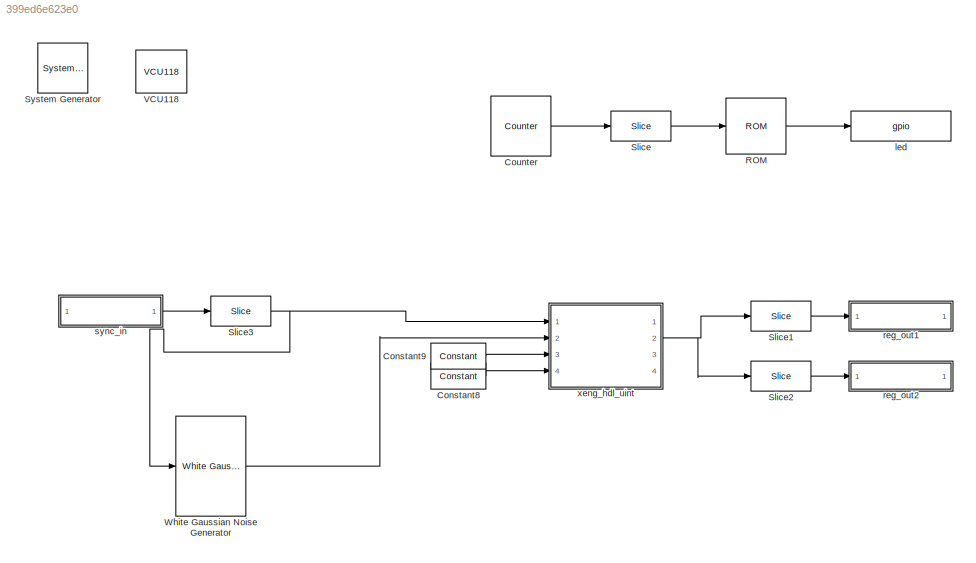
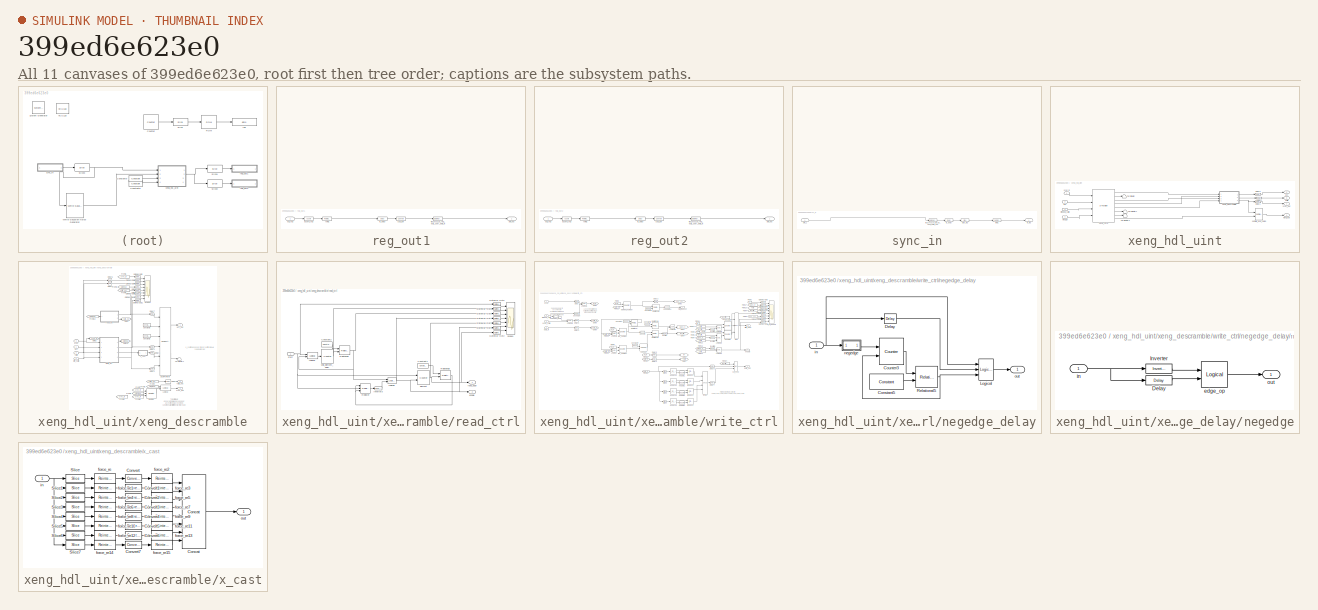
[diagram: thumbnail index - all 11 canvases of the model, root first then tree order]
MODEL slx_399ed6e623e0
KIND model
CONFIG AbsTol = auto
CONFIG EnableMultiTasking = off
CONFIG FixedStep = auto
CONFIG MaxStep = auto
CONFIG MinStep = auto
CONFIG RelTol = 1e-3
CONFIG SampleTimeConstraint = Unconstrained
CONFIG Solver = VariableStepAuto
CONFIG SolverName = VariableStepAuto
CONFIG StartTime = 0.0
CONFIG StopTime = 10.0
BLOCK [Reference]  System Generator  REF=xbsIndex_r4/ System Generator
  AttributesFormatString = System\nGenerator
  Ports = []
  SourceBlock = xbsIndex_r4/ System Generator
  SourceType = Xilinx System Generator Block
  Tag = genX
  UserDataPersistent = on
BLOCK [Reference] Constant8  REF=xbsIndex_r4/Constant
  Ports = [0, 1]
  SourceBlock = xbsIndex_r4/Constant
  SourceType = Xilinx Constant Block Block
BLOCK [Reference] Constant9  REF=xbsIndex_r4/Constant
  Ports = [0, 1]
  SourceBlock = xbsIndex_r4/Constant
  SourceType = Xilinx Constant Block Block
BLOCK [Reference] Counter  REF=xbsIndex_r4/Counter
  Ports = [0, 1]
  SourceBlock = xbsIndex_r4/Counter
  SourceType = Xilinx Counter Block
BLOCK [Reference] ROM  REF=xbsIndex_r4/ROM
  Ports = [1, 1]
  SourceBlock = xbsIndex_r4/ROM
  SourceType = Xilinx Single Port Read-Only Memory Block
BLOCK [Reference] Slice  REF=xbsIndex_r4/Slice
  Ports = [1, 1]
  SourceBlock = xbsIndex_r4/Slice
  SourceType = Xilinx Bit Slice Extractor Block
BLOCK [Reference] Slice1  REF=xbsIndex_r4/Slice
  Ports = [1, 1]
  SourceBlock = xbsIndex_r4/Slice
  SourceType = Xilinx Bit Slice Extractor Block
BLOCK [Reference] Slice2  REF=xbsIndex_r4/Slice
  Ports = [1, 1]
  SourceBlock = xbsIndex_r4/Slice
  SourceType = Xilinx Bit Slice Extractor Block
BLOCK [Reference] Slice3  REF=xbsIndex_r4/Slice
  Ports = [1, 1]
  SourceBlock = xbsIndex_r4/Slice
  SourceType = Xilinx Bit Slice Extractor Block
BLOCK [Reference] VCU118  REF=xps_library/platforms/VCU118  (lib defined in mdl_00b5cec29cd0, mdl_02ab6ecaa3d1, +5 more)
  Ports = []
  SourceBlock = xps_library/platforms/VCU118
  SourceType = xsg core config
  Tag = xps:xsg
BLOCK [Reference] White Gaussian Noise Generator  REF=xrbsComm_r4/White Gaussian 
Noise Generator
  Ports = [1, 1]
  SourceBlock = xrbsComm_r4/White Gaussian \nNoise Generator
  SourceType = White Gaussian Noise Generator
BLOCK [Reference] led  REF=xps_library/gpio  (lib defined in mdl_00b5cec29cd0, mdl_02ab6ecaa3d1, +5 more)
  Ports = [1, 1]
  SourceBlock = xps_library/gpio
  SourceType = gpio
  Tag = xps:gpio
BLOCK [SubSystem] reg_out1
  AncestorBlock = xps_library/software register
  AttributesFormatString = 1output:uf32.0
  Ports = [1, 1]
  RequestExecContextInheritance = off
  Tag = xps:sw_reg
  Variant = off
BLOCK [Reference] reg_out1/assert_reg  REF=xbsIndex_r4/Assert
  Ports = [1, 1]
  SourceBlock = xbsIndex_r4/Assert
  SourceType = Xilinx Assert Block
BLOCK [Reference] reg_out1/cast_gw  REF=xbsIndex_r4/Convert
  Ports = [1, 1]
  SourceBlock = xbsIndex_r4/Convert
  SourceType = Xilinx Type Converter Block
BLOCK [Reference] reg_out1/io_delay  REF=xbsIndex_r4/Delay
  Ports = [1, 1]
  SourceBlock = xbsIndex_r4/Delay
  SourceType = Xilinx Delay Block
BLOCK [Inport] reg_out1/out_reg
  IconDisplay = Port number
BLOCK [Reference] reg_out1/reint1  REF=xbsIndex_r4/Reinterpret
  Ports = [1, 1]
  SourceBlock = xbsIndex_r4/Reinterpret
  SourceType = Xilinx Type Reinterpreter Block
BLOCK [Outport] reg_out1/sim_out
  IconDisplay = Port number
BLOCK [Reference] reg_out1/test_vcu118_reg_out1_user_data_in  REF=xbsIndex_r4/Gateway Out
  Ports = [1, 1]
  SourceBlock = xbsIndex_r4/Gateway Out
  SourceType = Xilinx Gateway Out Block
BLOCK [SubSystem] reg_out2
  AncestorBlock = xps_library/software register
  AttributesFormatString = 1output:uf32.0
  Ports = [1, 1]
  RequestExecContextInheritance = off
  Tag = xps:sw_reg
  Variant = off
BLOCK [Reference] reg_out2/assert_reg  REF=xbsIndex_r4/Assert
  Ports = [1, 1]
  SourceBlock = xbsIndex_r4/Assert
  SourceType = Xilinx Assert Block
BLOCK [Reference] reg_out2/cast_gw  REF=xbsIndex_r4/Convert
  Ports = [1, 1]
  SourceBlock = xbsIndex_r4/Convert
  SourceType = Xilinx Type Converter Block
BLOCK [Reference] reg_out2/io_delay  REF=xbsIndex_r4/Delay
  Ports = [1, 1]
  SourceBlock = xbsIndex_r4/Delay
  SourceType = Xilinx Delay Block
BLOCK [Inport] reg_out2/out_reg
  IconDisplay = Port number
BLOCK [Reference] reg_out2/reint1  REF=xbsIndex_r4/Reinterpret
  Ports = [1, 1]
  SourceBlock = xbsIndex_r4/Reinterpret
  SourceType = Xilinx Type Reinterpreter Block
BLOCK [Outport] reg_out2/sim_out
  IconDisplay = Port number
BLOCK [Reference] reg_out2/test_vcu118_reg_out2_user_data_in  REF=xbsIndex_r4/Gateway Out
  Ports = [1, 1]
  SourceBlock = xbsIndex_r4/Gateway Out
  SourceType = Xilinx Gateway Out Block
BLOCK [SubSystem] sync_in
  AncestorBlock = xps_library/software_register
  AttributesFormatString = 1input:uf32.0
  Ports = [1, 1]
  RequestExecContextInheritance = off
  Tag = xps:sw_reg
  Variant = off
BLOCK [Outport] sync_in/in_reg
  IconDisplay = Port number
BLOCK [Reference] sync_in/io_delay  REF=xbsIndex_r4/Delay
  Ports = [1, 1]
  SourceBlock = xbsIndex_r4/Delay
  SourceType = Xilinx Delay Block
BLOCK [Reference] sync_in/reint1  REF=xbsIndex_r4/Reinterpret
  Ports = [1, 1]
  SourceBlock = xbsIndex_r4/Reinterpret
  SourceType = Xilinx Type Reinterpreter Block
BLOCK [Inport] sync_in/sim_1
  IconDisplay = Port number
BLOCK [Reference] sync_in/slice_reg  REF=xbsIndex_r4/Slice
  Ports = [1, 1]
  SourceBlock = xbsIndex_r4/Slice
  SourceType = Xilinx Bit Slice Extractor Block
BLOCK [Reference] sync_in/test_vcu118_reg_in_user_data_out  REF=xbsIndex_r4/Gateway In
  Ports = [1, 1]
  SourceBlock = xbsIndex_r4/Gateway In
  SourceType = Xilinx Gateway In Block
BLOCK [SubSystem] xeng_hdl_uint
  AttributesFormatString = n_ants=512\nacc_len=2x1024\ndemux=2
  Ports = [4, 4]
  RequestExecContextInheritance = off
  UserDataPersistent = on
  Variant = off
BLOCK [Terminator] xeng_hdl_uint/Terminator
BLOCK [Terminator] xeng_hdl_uint/Terminator1
BLOCK [Terminator] xeng_hdl_uint/Terminator2
BLOCK [Outport] xeng_hdl_uint/acc
  IconDisplay = Port number
  Port = 2
BLOCK [Inport] xeng_hdl_uint/ant
  IconDisplay = Port number
  Port = 2
BLOCK [Reference] xeng_hdl_uint/delay1  REF=xbsIndex_r4/Delay
  Ports = [1, 1]
  SourceBlock = xbsIndex_r4/Delay
  SourceType = Xilinx Delay Block
BLOCK [Reference] xeng_hdl_uint/delay2  REF=xbsIndex_r4/Delay
  Ports = [1, 1]
  SourceBlock = xbsIndex_r4/Delay
  SourceType = Xilinx Delay Block
BLOCK [Reference] xeng_hdl_uint/delay3  REF=xbsIndex_r4/Delay
  Ports = [1, 1]
  SourceBlock = xbsIndex_r4/Delay
  SourceType = Xilinx Delay Block
BLOCK [Inport] xeng_hdl_uint/mcnt_in
  IconDisplay = Port number
  Port = 4
BLOCK [Outport] xeng_hdl_uint/mcnt_out
  IconDisplay = Port number
  Port = 4
BLOCK [Reference] xeng_hdl_uint/sample_and_hold3  REF=casper_library_misc/sample_and_hold  (lib defined in mdl_357510c33b49, mdl_57b5f564ae26, +4 more)
  Ports = [2, 1]
  SourceBlock = casper_library_misc/sample_and_hold
  SourceType = sample_and_hold
BLOCK [Inport] xeng_hdl_uint/sync_in
  IconDisplay = Port number
BLOCK [Outport] xeng_hdl_uint/sync_out
  IconDisplay = Port number
BLOCK [Outport] xeng_hdl_uint/valid
  IconDisplay = Port number
  Port = 3
BLOCK [Inport] xeng_hdl_uint/window_valid
  IconDisplay = Port number
  Port = 3
BLOCK [S-Function] xeng_hdl_uint/xeng_core
  AncestorBlock = xbsIndex_r4/Black Box
  CloseFcn = xlDestroyGui(gcbh);
  CopyFcn = xlBlockMoveCallback(gcbh);;xlbbCopyCallback;
  DeleteFcn = xlDestroyGui(gcbh);
  DestroyFcn = xlDestroyGui(gcbh);
  EnableBusSupport = off
  FunctionName = sysgen
  LoadFcn = xlBlockLoadCallback(gcbh);
  ModelCloseFcn = xlDestroyGui(gcbh);
  MoveFcn = xlBlockMoveCallback(gcbh);
  OpenFcn = xlOpenGui(gcbh, 'blackbox2_gui.xml', @blackbox2enablement, -1)
  Parameters = ptable_
  Ports = [4, 8]
  PostSaveFcn = xlBlockPostSaveCallback(gcbh);
  PreSaveFcn = xlBlockPreSaveCallback(gcbh);
  SFcnIsStateOwnerBlock = off
  SFunctionDeploymentMode = off
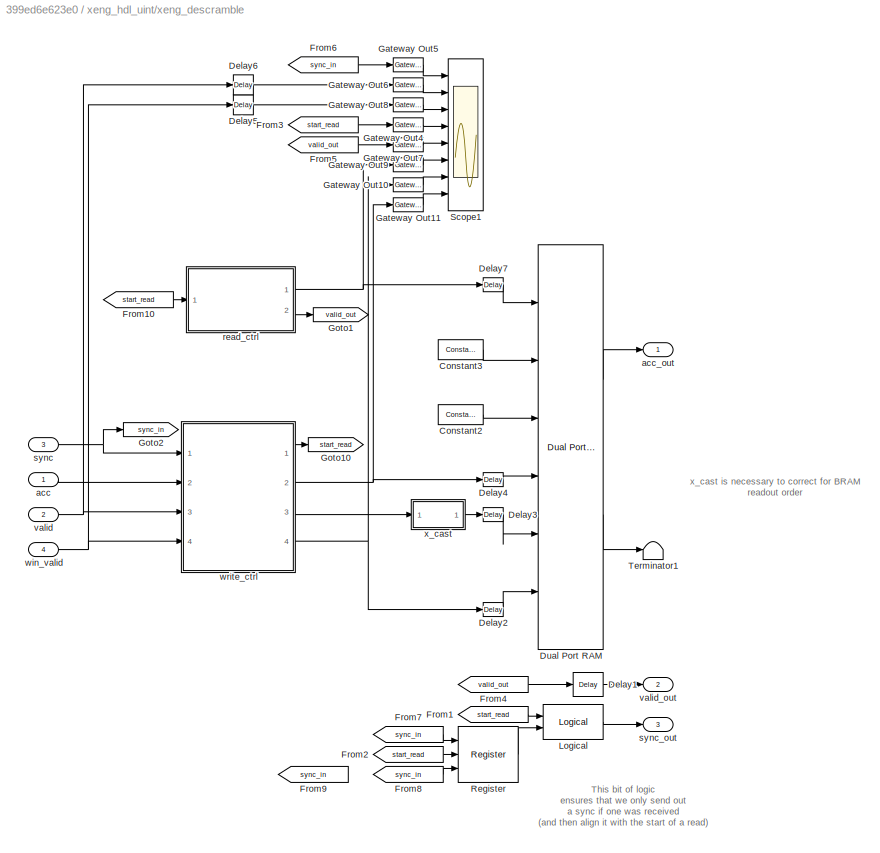
BLOCK [SubSystem] xeng_hdl_uint/xeng_descramble
  AncestorBlock = casper_library_correlator/xeng_descramble
  AttributesFormatString = num_ants=512
  Ports = [4, 3]
  RequestExecContextInheritance = off
  Variant = off
BLOCK [Reference] xeng_hdl_uint/xeng_descramble/Constant2  REF=xbsIndex_r4/Constant
  Ports = [0, 1]
  SourceBlock = xbsIndex_r4/Constant
  SourceType = Xilinx Constant Block Block
BLOCK [Reference] xeng_hdl_uint/xeng_descramble/Constant3  REF=xbsIndex_r4/Constant
  Ports = [0, 1]
  SourceBlock = xbsIndex_r4/Constant
  SourceType = Xilinx Constant Block Block
BLOCK [Reference] xeng_hdl_uint/xeng_descramble/Delay1  REF=xbsIndex_r4/Delay
  Ports = [1, 1]
  SourceBlock = xbsIndex_r4/Delay
  SourceType = Xilinx Delay Block
BLOCK [Reference] xeng_hdl_uint/xeng_descramble/Delay2  REF=xbsIndex_r4/Delay
  Ports = [1, 1]
  SourceBlock = xbsIndex_r4/Delay
  SourceType = Xilinx Delay Block
BLOCK [Reference] xeng_hdl_uint/xeng_descramble/Delay3  REF=xbsIndex_r4/Delay
  Ports = [1, 1]
  SourceBlock = xbsIndex_r4/Delay
  SourceType = Xilinx Delay Block
BLOCK [Reference] xeng_hdl_uint/xeng_descramble/Delay4  REF=xbsIndex_r4/Delay
  Ports = [1, 1]
  SourceBlock = xbsIndex_r4/Delay
  SourceType = Xilinx Delay Block
BLOCK [Reference] xeng_hdl_uint/xeng_descramble/Delay5  REF=xbsIndex_r4/Delay
  Ports = [1, 1]
  SourceBlock = xbsIndex_r4/Delay
  SourceType = Xilinx Delay Block
BLOCK [Reference] xeng_hdl_uint/xeng_descramble/Delay6  REF=xbsIndex_r4/Delay
  Ports = [1, 1]
  SourceBlock = xbsIndex_r4/Delay
  SourceType = Xilinx Delay Block
BLOCK [Reference] xeng_hdl_uint/xeng_descramble/Delay7  REF=xbsIndex_r4/Delay
  Ports = [1, 1]
  SourceBlock = xbsIndex_r4/Delay
  SourceType = Xilinx Delay Block
BLOCK [Reference] xeng_hdl_uint/xeng_descramble/Dual Port RAM  REF=xbsIndex_r4/Dual Port RAM
  Ports = [6, 2]
  SourceBlock = xbsIndex_r4/Dual Port RAM
  SourceType = Xilinx Dual Port Random Access Memory Block
BLOCK [From] xeng_hdl_uint/xeng_descramble/From1
  CloseFcn = tagdialog Close
  GotoTag = start_read
BLOCK [From] xeng_hdl_uint/xeng_descramble/From10
  CloseFcn = tagdialog Close
  GotoTag = start_read
BLOCK [From] xeng_hdl_uint/xeng_descramble/From2
  CloseFcn = tagdialog Close
  GotoTag = start_read
BLOCK [From] xeng_hdl_uint/xeng_descramble/From3
  CloseFcn = tagdialog Close
  GotoTag = start_read
BLOCK [From] xeng_hdl_uint/xeng_descramble/From4
  CloseFcn = tagdialog Close
  GotoTag = valid_out
BLOCK [From] xeng_hdl_uint/xeng_descramble/From5
  CloseFcn = tagdialog Close
  GotoTag = valid_out
BLOCK [From] xeng_hdl_uint/xeng_descramble/From6
  CloseFcn = tagdialog Close
  GotoTag = sync_in
BLOCK [From] xeng_hdl_uint/xeng_descramble/From7
  CloseFcn = tagdialog Close
  GotoTag = sync_in
BLOCK [From] xeng_hdl_uint/xeng_descramble/From8
  CloseFcn = tagdialog Close
  GotoTag = sync_in
BLOCK [From] xeng_hdl_uint/xeng_descramble/From9
  CloseFcn = tagdialog Close
  GotoTag = sync_in
BLOCK [Reference] xeng_hdl_uint/xeng_descramble/Gateway Out10  REF=xbsIndex_r4/Gateway Out
  Ports = [1, 1]
  SourceBlock = xbsIndex_r4/Gateway Out
  SourceType = Xilinx Gateway Out Block
BLOCK [Reference] xeng_hdl_uint/xeng_descramble/Gateway Out11  REF=xbsIndex_r4/Gateway Out
  Ports = [1, 1]
  SourceBlock = xbsIndex_r4/Gateway Out
  SourceType = Xilinx Gateway Out Block
BLOCK [Reference] xeng_hdl_uint/xeng_descramble/Gateway Out4  REF=xbsIndex_r4/Gateway Out
  Ports = [1, 1]
  SourceBlock = xbsIndex_r4/Gateway Out
  SourceType = Xilinx Gateway Out Block
BLOCK [Reference] xeng_hdl_uint/xeng_descramble/Gateway Out5  REF=xbsIndex_r4/Gateway Out
  Ports = [1, 1]
  SourceBlock = xbsIndex_r4/Gateway Out
  SourceType = Xilinx Gateway Out Block
BLOCK [Reference] xeng_hdl_uint/xeng_descramble/Gateway Out6  REF=xbsIndex_r4/Gateway Out
  Ports = [1, 1]
  SourceBlock = xbsIndex_r4/Gateway Out
  SourceType = Xilinx Gateway Out Block
BLOCK [Reference] xeng_hdl_uint/xeng_descramble/Gateway Out7  REF=xbsIndex_r4/Gateway Out
  Ports = [1, 1]
  SourceBlock = xbsIndex_r4/Gateway Out
  SourceType = Xilinx Gateway Out Block
BLOCK [Reference] xeng_hdl_uint/xeng_descramble/Gateway Out8  REF=xbsIndex_r4/Gateway Out
  Ports = [1, 1]
  SourceBlock = xbsIndex_r4/Gateway Out
  SourceType = Xilinx Gateway Out Block
BLOCK [Reference] xeng_hdl_uint/xeng_descramble/Gateway Out9  REF=xbsIndex_r4/Gateway Out
  Ports = [1, 1]
  SourceBlock = xbsIndex_r4/Gateway Out
  SourceType = Xilinx Gateway Out Block
BLOCK [Goto] xeng_hdl_uint/xeng_descramble/Goto1
  GotoTag = valid_out
BLOCK [Goto] xeng_hdl_uint/xeng_descramble/Goto10
  GotoTag = start_read
BLOCK [Goto] xeng_hdl_uint/xeng_descramble/Goto2
  GotoTag = sync_in
BLOCK [Reference] xeng_hdl_uint/xeng_descramble/Logical  REF=xbsIndex_r4/Logical
  Ports = [2, 1]
  SourceBlock = xbsIndex_r4/Logical
  SourceType = Xilinx Logical Block Block
BLOCK [Reference] xeng_hdl_uint/xeng_descramble/Register  REF=xbsIndex_r4/Register
  Ports = [3, 1]
  SourceBlock = xbsIndex_r4/Register
  SourceType = Xilinx Register Block
BLOCK [Scope] xeng_hdl_uint/xeng_descramble/Scope1
  NumInputPorts = 8
  Ports = [8]
  ScopeSpecificationString = C++SS(StrPVP('Location','[1675, 185, 3593, 1323]'),StrPVP('Open','off'),StrPVP('ZoomMode','xonly'),MxPVP('AxesTitles',24,'struct(''axes1'',''sync'',''axes2'',''valid_in'',''axes3'',''window_valid'',''axes4'',''start_readout'',''axes5'',''valid_out'',''axes6'',''read_addr'',''axes7'',''valid_write'',''axes8'',''write_addr'')'),StrPVP('ShowLegends','off'),StrPVP('TimeRange','70000'),StrPVP('YMin','0...<+255ch>
BLOCK [Terminator] xeng_hdl_uint/xeng_descramble/Terminator1
BLOCK [Inport] xeng_hdl_uint/xeng_descramble/acc
  IconDisplay = Port number
BLOCK [Outport] xeng_hdl_uint/xeng_descramble/acc_out
  IconDisplay = Port number
BLOCK [SubSystem] xeng_hdl_uint/xeng_descramble/read_ctrl
  AncestorBlock = casper_library_correlator/xeng_mask/win2_ctrl
  Ports = [1, 2]
  RequestExecContextInheritance = off
  Variant = off
BLOCK [Reference] xeng_hdl_uint/xeng_descramble/read_ctrl/Constant1  REF=xbsIndex_r4/Constant
  Ports = [0, 1]
  SourceBlock = xbsIndex_r4/Constant
  SourceType = Xilinx Constant Block Block
BLOCK [Reference] xeng_hdl_uint/xeng_descramble/read_ctrl/Constant2  REF=xbsIndex_r4/Constant
  Ports = [0, 1]
  SourceBlock = xbsIndex_r4/Constant
  SourceType = Xilinx Constant Block Block
BLOCK [Reference] xeng_hdl_uint/xeng_descramble/read_ctrl/Gateway Out1  REF=xbsIndex_r4/Gateway Out
  Ports = [1, 1]
  SourceBlock = xbsIndex_r4/Gateway Out
  SourceType = Xilinx Gateway Out Block
BLOCK [Reference] xeng_hdl_uint/xeng_descramble/read_ctrl/Gateway Out2  REF=xbsIndex_r4/Gateway Out
  Ports = [1, 1]
  SourceBlock = xbsIndex_r4/Gateway Out
  SourceType = Xilinx Gateway Out Block
BLOCK [Reference] xeng_hdl_uint/xeng_descramble/read_ctrl/Gateway Out4  REF=xbsIndex_r4/Gateway Out
  Ports = [1, 1]
  SourceBlock = xbsIndex_r4/Gateway Out
  SourceType = Xilinx Gateway Out Block
BLOCK [Reference] xeng_hdl_uint/xeng_descramble/read_ctrl/Gateway Out5  REF=xbsIndex_r4/Gateway Out
  Ports = [1, 1]
  SourceBlock = xbsIndex_r4/Gateway Out
  SourceType = Xilinx Gateway Out Block
BLOCK [Reference] xeng_hdl_uint/xeng_descramble/read_ctrl/Gateway Out6  REF=xbsIndex_r4/Gateway Out
  Ports = [1, 1]
  SourceBlock = xbsIndex_r4/Gateway Out
  SourceType = Xilinx Gateway Out Block
BLOCK [Reference] xeng_hdl_uint/xeng_descramble/read_ctrl/Gateway Out7  REF=xbsIndex_r4/Gateway Out
  Ports = [1, 1]
  SourceBlock = xbsIndex_r4/Gateway Out
  SourceType = Xilinx Gateway Out Block
BLOCK [Reference] xeng_hdl_uint/xeng_descramble/read_ctrl/Gateway Out8  REF=xbsIndex_r4/Gateway Out
  Ports = [1, 1]
  SourceBlock = xbsIndex_r4/Gateway Out
  SourceType = Xilinx Gateway Out Block
BLOCK [Reference] xeng_hdl_uint/xeng_descramble/read_ctrl/Inverter3  REF=xbsIndex_r4/Inverter
  Ports = [1, 1]
  SourceBlock = xbsIndex_r4/Inverter
  SourceType = Xilinx Inverter Block
BLOCK [Reference] xeng_hdl_uint/xeng_descramble/read_ctrl/Logical1  REF=xbsIndex_r4/Logical
  Ports = [2, 1]
  SourceBlock = xbsIndex_r4/Logical
  SourceType = Xilinx Logical Block Block
BLOCK [Reference] xeng_hdl_uint/xeng_descramble/read_ctrl/Logical7  REF=xbsIndex_r4/Logical
  Ports = [2, 1]
  SourceBlock = xbsIndex_r4/Logical
  SourceType = Xilinx Logical Block Block
BLOCK [Reference] xeng_hdl_uint/xeng_descramble/read_ctrl/Register  REF=xbsIndex_r4/Register
  Ports = [3, 1]
  SourceBlock = xbsIndex_r4/Register
  SourceType = Xilinx Register Block
BLOCK [Reference] xeng_hdl_uint/xeng_descramble/read_ctrl/Relational1  REF=xbsIndex_r4/Relational
  Ports = [2, 1]
  SourceBlock = xbsIndex_r4/Relational
  SourceType = Xilinx Arithmetic Relational Operator Block
BLOCK [Reference] xeng_hdl_uint/xeng_descramble/read_ctrl/Relational3  REF=xbsIndex_r4/Relational
  Ports = [2, 1]
  SourceBlock = xbsIndex_r4/Relational
  SourceType = Xilinx Arithmetic Relational Operator Block
BLOCK [Scope] xeng_hdl_uint/xeng_descramble/read_ctrl/Scope1
  NumInputPorts = 7
  Ports = [7]
  ScopeSpecificationString = C++SS(StrPVP('Location','[1675, 56, 3593, 1194]'),StrPVP('Open','off'),StrPVP('ZoomMode','xonly'),MxPVP('AxesTitles',24,'struct(''axes1'',''start_readout'',''axes2'',''delay_readout_cnt'',''axes3'',''ship_element_now'',''axes4'',''rst_element_cnt'',''axes5'',''element_cnt'',''axes6'',''read'',''axes7'',''read_addr'')'),StrPVP('ShowLegends','off'),StrPVP('YMin','0~0~0~0~0~0~0'),StrPVP('YMax','1~20~...<+215ch>
BLOCK [Reference] xeng_hdl_uint/xeng_descramble/read_ctrl/element  REF=xbsIndex_r4/Counter
  Ports = [2, 1]
  SourceBlock = xbsIndex_r4/Counter
  SourceType = Xilinx Counter Block
BLOCK [Outport] xeng_hdl_uint/xeng_descramble/read_ctrl/enable
  IconDisplay = Port number
  Port = 2
BLOCK [Outport] xeng_hdl_uint/xeng_descramble/read_ctrl/read_addr
  IconDisplay = Port number
BLOCK [Reference] xeng_hdl_uint/xeng_descramble/read_ctrl/ship_element_delay  REF=xbsIndex_r4/Counter
  Ports = [1, 1]
  SourceBlock = xbsIndex_r4/Counter
  SourceType = Xilinx Counter Block
BLOCK [Inport] xeng_hdl_uint/xeng_descramble/read_ctrl/start
  IconDisplay = Port number
BLOCK [Inport] xeng_hdl_uint/xeng_descramble/sync
  IconDisplay = Port number
  Port = 3
BLOCK [Outport] xeng_hdl_uint/xeng_descramble/sync_out
  IconDisplay = Port number
  Port = 3
BLOCK [Inport] xeng_hdl_uint/xeng_descramble/valid
  IconDisplay = Port number
  Port = 2
BLOCK [Outport] xeng_hdl_uint/xeng_descramble/valid_out
  IconDisplay = Port number
  Port = 2
BLOCK [Inport] xeng_hdl_uint/xeng_descramble/win_valid
  IconDisplay = Port number
  Port = 4
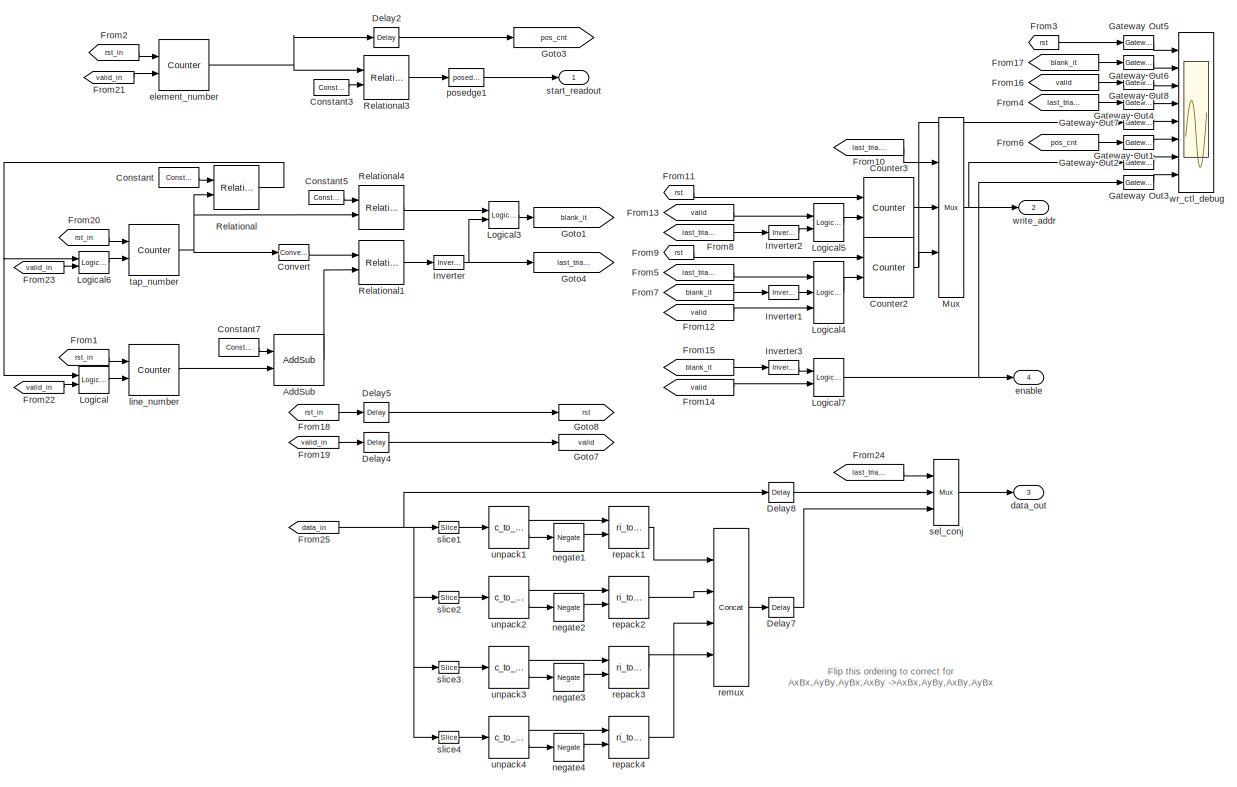
[diagram: xeng_hdl_uint/xeng_descramble/write_ctrl - part 1/2, most of the canvas]
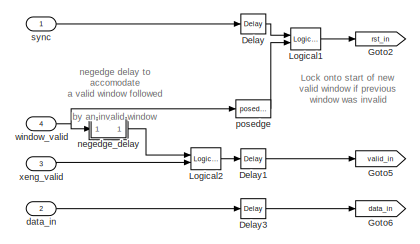
[diagram: xeng_hdl_uint/xeng_descramble/write_ctrl - part 2/2, top left region]
BLOCK [SubSystem] xeng_hdl_uint/xeng_descramble/write_ctrl
  AncestorBlock = casper_library_correlator/xeng_mask/win2_ctrl
  Ports = [4, 4]
  RequestExecContextInheritance = off
  Variant = off
BLOCK [Reference] xeng_hdl_uint/xeng_descramble/write_ctrl/AddSub  REF=xbsIndex_r4/AddSub
  Ports = [2, 1]
  SourceBlock = xbsIndex_r4/AddSub
  SourceType = Xilinx Adder/Subtracter Block
BLOCK [Reference] xeng_hdl_uint/xeng_descramble/write_ctrl/Constant  REF=xbsIndex_r4/Constant
  Ports = [0, 1]
  SourceBlock = xbsIndex_r4/Constant
  SourceType = Xilinx Constant Block Block
BLOCK [Reference] xeng_hdl_uint/xeng_descramble/write_ctrl/Constant3  REF=xbsIndex_r4/Constant
  Ports = [0, 1]
  SourceBlock = xbsIndex_r4/Constant
  SourceType = Xilinx Constant Block Block
BLOCK [Reference] xeng_hdl_uint/xeng_descramble/write_ctrl/Constant5  REF=xbsIndex_r4/Constant
  Ports = [0, 1]
  SourceBlock = xbsIndex_r4/Constant
  SourceType = Xilinx Constant Block Block
BLOCK [Reference] xeng_hdl_uint/xeng_descramble/write_ctrl/Constant7  REF=xbsIndex_r4/Constant
  Ports = [0, 1]
  SourceBlock = xbsIndex_r4/Constant
  SourceType = Xilinx Constant Block Block
BLOCK [Reference] xeng_hdl_uint/xeng_descramble/write_ctrl/Convert  REF=xbsIndex_r4/Convert
  Ports = [1, 1]
  SourceBlock = xbsIndex_r4/Convert
  SourceType = Xilinx Type Converter Block
BLOCK [Reference] xeng_hdl_uint/xeng_descramble/write_ctrl/Counter2  REF=xbsIndex_r4/Counter
  Ports = [2, 1]
  SourceBlock = xbsIndex_r4/Counter
  SourceType = Xilinx Counter Block
BLOCK [Reference] xeng_hdl_uint/xeng_descramble/write_ctrl/Counter3  REF=xbsIndex_r4/Counter
  Ports = [2, 1]
  SourceBlock = xbsIndex_r4/Counter
  SourceType = Xilinx Counter Block
BLOCK [Reference] xeng_hdl_uint/xeng_descramble/write_ctrl/Delay  REF=xbsIndex_r4/Delay
  Ports = [1, 1]
  SourceBlock = xbsIndex_r4/Delay
  SourceType = Xilinx Delay Block
BLOCK [Reference] xeng_hdl_uint/xeng_descramble/write_ctrl/Delay1  REF=xbsIndex_r4/Delay
  Ports = [1, 1]
  SourceBlock = xbsIndex_r4/Delay
  SourceType = Xilinx Delay Block
BLOCK [Reference] xeng_hdl_uint/xeng_descramble/write_ctrl/Delay2  REF=xbsIndex_r4/Delay
  Ports = [1, 1]
  SourceBlock = xbsIndex_r4/Delay
  SourceType = Xilinx Delay Block
BLOCK [Reference] xeng_hdl_uint/xeng_descramble/write_ctrl/Delay3  REF=xbsIndex_r4/Delay
  Ports = [1, 1]
  SourceBlock = xbsIndex_r4/Delay
  SourceType = Xilinx Delay Block
BLOCK [Reference] xeng_hdl_uint/xeng_descramble/write_ctrl/Delay4  REF=xbsIndex_r4/Delay
  Ports = [1, 1]
  SourceBlock = xbsIndex_r4/Delay
  SourceType = Xilinx Delay Block
BLOCK [Reference] xeng_hdl_uint/xeng_descramble/write_ctrl/Delay5  REF=xbsIndex_r4/Delay
  Ports = [1, 1]
  SourceBlock = xbsIndex_r4/Delay
  SourceType = Xilinx Delay Block
BLOCK [Reference] xeng_hdl_uint/xeng_descramble/write_ctrl/Delay7  REF=xbsIndex_r4/Delay
  Ports = [1, 1]
  SourceBlock = xbsIndex_r4/Delay
  SourceType = Xilinx Delay Block
BLOCK [Reference] xeng_hdl_uint/xeng_descramble/write_ctrl/Delay8  REF=xbsIndex_r4/Delay
  Ports = [1, 1]
  SourceBlock = xbsIndex_r4/Delay
  SourceType = Xilinx Delay Block
BLOCK [From] xeng_hdl_uint/xeng_descramble/write_ctrl/From1
  CloseFcn = tagdialog Close
  GotoTag = rst_in
BLOCK [From] xeng_hdl_uint/xeng_descramble/write_ctrl/From10
  CloseFcn = tagdialog Close
  GotoTag = last_triangle
BLOCK [From] xeng_hdl_uint/xeng_descramble/write_ctrl/From11
  CloseFcn = tagdialog Close
  GotoTag = rst
BLOCK [From] xeng_hdl_uint/xeng_descramble/write_ctrl/From12
  CloseFcn = tagdialog Close
  GotoTag = valid
BLOCK [From] xeng_hdl_uint/xeng_descramble/write_ctrl/From13
  CloseFcn = tagdialog Close
  GotoTag = valid
BLOCK [From] xeng_hdl_uint/xeng_descramble/write_ctrl/From14
  CloseFcn = tagdialog Close
  GotoTag = valid
BLOCK [From] xeng_hdl_uint/xeng_descramble/write_ctrl/From15
  CloseFcn = tagdialog Close
  GotoTag = blank_it
BLOCK [From] xeng_hdl_uint/xeng_descramble/write_ctrl/From16
  CloseFcn = tagdialog Close
  GotoTag = valid
BLOCK [From] xeng_hdl_uint/xeng_descramble/write_ctrl/From17
  CloseFcn = tagdialog Close
  GotoTag = blank_it
BLOCK [From] xeng_hdl_uint/xeng_descramble/write_ctrl/From18
  CloseFcn = tagdialog Close
  GotoTag = rst_in
BLOCK [From] xeng_hdl_uint/xeng_descramble/write_ctrl/From19
  CloseFcn = tagdialog Close
  GotoTag = valid_in
BLOCK [From] xeng_hdl_uint/xeng_descramble/write_ctrl/From2
  CloseFcn = tagdialog Close
  GotoTag = rst_in
BLOCK [From] xeng_hdl_uint/xeng_descramble/write_ctrl/From20
  CloseFcn = tagdialog Close
  GotoTag = rst_in
BLOCK [From] xeng_hdl_uint/xeng_descramble/write_ctrl/From21
  CloseFcn = tagdialog Close
  GotoTag = valid_in
BLOCK [From] xeng_hdl_uint/xeng_descramble/write_ctrl/From22
  CloseFcn = tagdialog Close
  GotoTag = valid_in
BLOCK [From] xeng_hdl_uint/xeng_descramble/write_ctrl/From23
  CloseFcn = tagdialog Close
  GotoTag = valid_in
BLOCK [From] xeng_hdl_uint/xeng_descramble/write_ctrl/From24
  CloseFcn = tagdialog Close
  GotoTag = last_triangle
BLOCK [From] xeng_hdl_uint/xeng_descramble/write_ctrl/From25
  CloseFcn = tagdialog Close
  GotoTag = data_in
BLOCK [From] xeng_hdl_uint/xeng_descramble/write_ctrl/From3
  CloseFcn = tagdialog Close
  GotoTag = rst
BLOCK [From] xeng_hdl_uint/xeng_descramble/write_ctrl/From4
  CloseFcn = tagdialog Close
  GotoTag = last_triangle
BLOCK [From] xeng_hdl_uint/xeng_descramble/write_ctrl/From5
  CloseFcn = tagdialog Close
  GotoTag = last_triangle
BLOCK [From] xeng_hdl_uint/xeng_descramble/write_ctrl/From6
  CloseFcn = tagdialog Close
  GotoTag = pos_cnt
BLOCK [From] xeng_hdl_uint/xeng_descramble/write_ctrl/From7
  CloseFcn = tagdialog Close
  GotoTag = blank_it
BLOCK [From] xeng_hdl_uint/xeng_descramble/write_ctrl/From8
  CloseFcn = tagdialog Close
  GotoTag = last_triangle
BLOCK [From] xeng_hdl_uint/xeng_descramble/write_ctrl/From9
  CloseFcn = tagdialog Close
  GotoTag = rst
BLOCK [Reference] xeng_hdl_uint/xeng_descramble/write_ctrl/Gateway Out1  REF=xbsIndex_r4/Gateway Out
  Ports = [1, 1]
  SourceBlock = xbsIndex_r4/Gateway Out
  SourceType = Xilinx Gateway Out Block
BLOCK [Reference] xeng_hdl_uint/xeng_descramble/write_ctrl/Gateway Out2  REF=xbsIndex_r4/Gateway Out
  Ports = [1, 1]
  SourceBlock = xbsIndex_r4/Gateway Out
  SourceType = Xilinx Gateway Out Block
BLOCK [Reference] xeng_hdl_uint/xeng_descramble/write_ctrl/Gateway Out3  REF=xbsIndex_r4/Gateway Out
  Ports = [1, 1]
  SourceBlock = xbsIndex_r4/Gateway Out
  SourceType = Xilinx Gateway Out Block
BLOCK [Reference] xeng_hdl_uint/xeng_descramble/write_ctrl/Gateway Out4  REF=xbsIndex_r4/Gateway Out
  Ports = [1, 1]
  SourceBlock = xbsIndex_r4/Gateway Out
  SourceType = Xilinx Gateway Out Block
BLOCK [Reference] xeng_hdl_uint/xeng_descramble/write_ctrl/Gateway Out5  REF=xbsIndex_r4/Gateway Out
  Ports = [1, 1]
  SourceBlock = xbsIndex_r4/Gateway Out
  SourceType = Xilinx Gateway Out Block
BLOCK [Reference] xeng_hdl_uint/xeng_descramble/write_ctrl/Gateway Out6  REF=xbsIndex_r4/Gateway Out
  Ports = [1, 1]
  SourceBlock = xbsIndex_r4/Gateway Out
  SourceType = Xilinx Gateway Out Block
BLOCK [Reference] xeng_hdl_uint/xeng_descramble/write_ctrl/Gateway Out7  REF=xbsIndex_r4/Gateway Out
  Ports = [1, 1]
  SourceBlock = xbsIndex_r4/Gateway Out
  SourceType = Xilinx Gateway Out Block
BLOCK [Reference] xeng_hdl_uint/xeng_descramble/write_ctrl/Gateway Out8  REF=xbsIndex_r4/Gateway Out
  Ports = [1, 1]
  SourceBlock = xbsIndex_r4/Gateway Out
  SourceType = Xilinx Gateway Out Block
BLOCK [Goto] xeng_hdl_uint/xeng_descramble/write_ctrl/Goto1
  GotoTag = blank_it
BLOCK [Goto] xeng_hdl_uint/xeng_descramble/write_ctrl/Goto2
  GotoTag = rst_in
BLOCK [Goto] xeng_hdl_uint/xeng_descramble/write_ctrl/Goto3
  GotoTag = pos_cnt
BLOCK [Goto] xeng_hdl_uint/xeng_descramble/write_ctrl/Goto4
  GotoTag = last_triangle
BLOCK [Goto] xeng_hdl_uint/xeng_descramble/write_ctrl/Goto5
  GotoTag = valid_in
BLOCK [Goto] xeng_hdl_uint/xeng_descramble/write_ctrl/Goto6
  GotoTag = data_in
BLOCK [Goto] xeng_hdl_uint/xeng_descramble/write_ctrl/Goto7
  GotoTag = valid
BLOCK [Goto] xeng_hdl_uint/xeng_descramble/write_ctrl/Goto8
  GotoTag = rst
BLOCK [Reference] xeng_hdl_uint/xeng_descramble/write_ctrl/Inverter  REF=xbsIndex_r4/Inverter
  Ports = [1, 1]
  SourceBlock = xbsIndex_r4/Inverter
  SourceType = Xilinx Inverter Block
BLOCK [Reference] xeng_hdl_uint/xeng_descramble/write_ctrl/Inverter1  REF=xbsIndex_r4/Inverter
  Ports = [1, 1]
  SourceBlock = xbsIndex_r4/Inverter
  SourceType = Xilinx Inverter Block
BLOCK [Reference] xeng_hdl_uint/xeng_descramble/write_ctrl/Inverter2  REF=xbsIndex_r4/Inverter
  Ports = [1, 1]
  SourceBlock = xbsIndex_r4/Inverter
  SourceType = Xilinx Inverter Block
BLOCK [Reference] xeng_hdl_uint/xeng_descramble/write_ctrl/Inverter3  REF=xbsIndex_r4/Inverter
  Ports = [1, 1]
  SourceBlock = xbsIndex_r4/Inverter
  SourceType = Xilinx Inverter Block
BLOCK [Reference] xeng_hdl_uint/xeng_descramble/write_ctrl/Logical  REF=xbsIndex_r4/Logical
  Ports = [2, 1]
  SourceBlock = xbsIndex_r4/Logical
  SourceType = Xilinx Logical Block Block
BLOCK [Reference] xeng_hdl_uint/xeng_descramble/write_ctrl/Logical1  REF=xbsIndex_r4/Logical
  Ports = [2, 1]
  SourceBlock = xbsIndex_r4/Logical
  SourceType = Xilinx Logical Block Block
BLOCK [Reference] xeng_hdl_uint/xeng_descramble/write_ctrl/Logical2  REF=xbsIndex_r4/Logical
  Ports = [2, 1]
  SourceBlock = xbsIndex_r4/Logical
  SourceType = Xilinx Logical Block Block
BLOCK [Reference] xeng_hdl_uint/xeng_descramble/write_ctrl/Logical3  REF=xbsIndex_r4/Logical
  Ports = [2, 1]
  SourceBlock = xbsIndex_r4/Logical
  SourceType = Xilinx Logical Block Block
BLOCK [Reference] xeng_hdl_uint/xeng_descramble/write_ctrl/Logical4  REF=xbsIndex_r4/Logical
  Ports = [3, 1]
  SourceBlock = xbsIndex_r4/Logical
  SourceType = Xilinx Logical Block Block
BLOCK [Reference] xeng_hdl_uint/xeng_descramble/write_ctrl/Logical5  REF=xbsIndex_r4/Logical
  Ports = [2, 1]
  SourceBlock = xbsIndex_r4/Logical
  SourceType = Xilinx Logical Block Block
BLOCK [Reference] xeng_hdl_uint/xeng_descramble/write_ctrl/Logical6  REF=xbsIndex_r4/Logical
  Ports = [2, 1]
  SourceBlock = xbsIndex_r4/Logical
  SourceType = Xilinx Logical Block Block
BLOCK [Reference] xeng_hdl_uint/xeng_descramble/write_ctrl/Logical7  REF=xbsIndex_r4/Logical
  Ports = [2, 1]
  SourceBlock = xbsIndex_r4/Logical
  SourceType = Xilinx Logical Block Block
BLOCK [Reference] xeng_hdl_uint/xeng_descramble/write_ctrl/Mux  REF=xbsIndex_r4/Mux
  Ports = [3, 1]
  SourceBlock = xbsIndex_r4/Mux
  SourceType = Xilinx Bus Multiplexer Block
BLOCK [Reference] xeng_hdl_uint/xeng_descramble/write_ctrl/Relational  REF=xbsIndex_r4/Relational
  Ports = [2, 1]
  SourceBlock = xbsIndex_r4/Relational
  SourceType = Xilinx Arithmetic Relational Operator Block
BLOCK [Reference] xeng_hdl_uint/xeng_descramble/write_ctrl/Relational1  REF=xbsIndex_r4/Relational
  Ports = [2, 1]
  SourceBlock = xbsIndex_r4/Relational
  SourceType = Xilinx Arithmetic Relational Operator Block
BLOCK [Reference] xeng_hdl_uint/xeng_descramble/write_ctrl/Relational3  REF=xbsIndex_r4/Relational
  Ports = [2, 1]
  SourceBlock = xbsIndex_r4/Relational
  SourceType = Xilinx Arithmetic Relational Operator Block
BLOCK [Reference] xeng_hdl_uint/xeng_descramble/write_ctrl/Relational4  REF=xbsIndex_r4/Relational
  Ports = [2, 1]
  SourceBlock = xbsIndex_r4/Relational
  SourceType = Xilinx Arithmetic Relational Operator Block
BLOCK [Inport] xeng_hdl_uint/xeng_descramble/write_ctrl/data_in
  IconDisplay = Port number
  Port = 2
BLOCK [Outport] xeng_hdl_uint/xeng_descramble/write_ctrl/data_out
  IconDisplay = Port number
  Port = 3
BLOCK [Reference] xeng_hdl_uint/xeng_descramble/write_ctrl/element_number  REF=xbsIndex_r4/Counter
  Ports = [2, 1]
  SourceBlock = xbsIndex_r4/Counter
  SourceType = Xilinx Counter Block
BLOCK [Outport] xeng_hdl_uint/xeng_descramble/write_ctrl/enable
  IconDisplay = Port number
  Port = 4
BLOCK [Reference] xeng_hdl_uint/xeng_descramble/write_ctrl/line_number  REF=xbsIndex_r4/Counter
  Ports = [2, 1]
  SourceBlock = xbsIndex_r4/Counter
  SourceType = Xilinx Counter Block
BLOCK [Reference] xeng_hdl_uint/xeng_descramble/write_ctrl/negate1  REF=xbsIndex_r4/Negate
  Ports = [1, 1]
  SourceBlock = xbsIndex_r4/Negate
  SourceType = Xilinx Negate Block Block
BLOCK [Reference] xeng_hdl_uint/xeng_descramble/write_ctrl/negate2  REF=xbsIndex_r4/Negate
  AttributesFormatString = num_ants=8
  Ports = [1, 1]
  SourceBlock = xbsIndex_r4/Negate
  SourceType = Xilinx Negate Block Block
BLOCK [Reference] xeng_hdl_uint/xeng_descramble/write_ctrl/negate3  REF=xbsIndex_r4/Negate
  Ports = [1, 1]
  SourceBlock = xbsIndex_r4/Negate
  SourceType = Xilinx Negate Block Block
BLOCK [Reference] xeng_hdl_uint/xeng_descramble/write_ctrl/negate4  REF=xbsIndex_r4/Negate
  Ports = [1, 1]
  SourceBlock = xbsIndex_r4/Negate
  SourceType = Xilinx Negate Block Block
BLOCK [SubSystem] xeng_hdl_uint/xeng_descramble/write_ctrl/negedge_delay
  AncestorBlock = casper_library_misc/negedge_delay
  Ports = [1, 1]
  RequestExecContextInheritance = off
  Variant = off
BLOCK [Reference] xeng_hdl_uint/xeng_descramble/write_ctrl/negedge_delay/Constant5  REF=xbsIndex_r4/Constant
  Ports = [0, 1]
  SourceBlock = xbsIndex_r4/Constant
  SourceType = Xilinx Constant Block Block
BLOCK [Reference] xeng_hdl_uint/xeng_descramble/write_ctrl/negedge_delay/Counter3  REF=xbsIndex_r4/Counter
  Ports = [2, 1]
  SourceBlock = xbsIndex_r4/Counter
  SourceType = Xilinx Counter Block
BLOCK [Reference] xeng_hdl_uint/xeng_descramble/write_ctrl/negedge_delay/Delay  REF=xbsIndex_r4/Delay
  Ports = [1, 1]
  SourceBlock = xbsIndex_r4/Delay
  SourceType = Xilinx Delay Block
BLOCK [Reference] xeng_hdl_uint/xeng_descramble/write_ctrl/negedge_delay/Logical  REF=xbsIndex_r4/Logical
  Ports = [3, 1]
  SourceBlock = xbsIndex_r4/Logical
  SourceType = Xilinx Logical Block Block
BLOCK [Reference] xeng_hdl_uint/xeng_descramble/write_ctrl/negedge_delay/Relational5  REF=xbsIndex_r4/Relational
  Ports = [2, 1]
  SourceBlock = xbsIndex_r4/Relational
  SourceType = Xilinx Arithmetic Relational Operator Block
BLOCK [Inport] xeng_hdl_uint/xeng_descramble/write_ctrl/negedge_delay/in
  IconDisplay = Port number
BLOCK [SubSystem] xeng_hdl_uint/xeng_descramble/write_ctrl/negedge_delay/negedge
  AncestorBlock = casper_library_misc/edge_detect
  AttributesFormatString = falling edges\nactive high
  Ports = [1, 1]
  RequestExecContextInheritance = off
  UserDataPersistent = on
  Variant = off
BLOCK [Reference] xeng_hdl_uint/xeng_descramble/write_ctrl/negedge_delay/negedge/Delay  REF=xbsIndex_r4/Delay
  Ports = [1, 1]
  SourceBlock = xbsIndex_r4/Delay
  SourceType = Xilinx Delay Block
BLOCK [Reference] xeng_hdl_uint/xeng_descramble/write_ctrl/negedge_delay/negedge/Inverter  REF=xbsIndex_r4/Inverter
  Ports = [1, 1]
  SourceBlock = xbsIndex_r4/Inverter
  SourceType = Xilinx Inverter Block
BLOCK [Reference] xeng_hdl_uint/xeng_descramble/write_ctrl/negedge_delay/negedge/edge_op  REF=xbsIndex_r4/Logical
  Ports = [2, 1]
  SourceBlock = xbsIndex_r4/Logical
  SourceType = Xilinx Logical Block Block
BLOCK [Inport] xeng_hdl_uint/xeng_descramble/write_ctrl/negedge_delay/negedge/in
  IconDisplay = Port number
BLOCK [Outport] xeng_hdl_uint/xeng_descramble/write_ctrl/negedge_delay/negedge/out
  IconDisplay = Port number
BLOCK [Outport] xeng_hdl_uint/xeng_descramble/write_ctrl/negedge_delay/out
  IconDisplay = Port number
BLOCK [Reference] xeng_hdl_uint/xeng_descramble/write_ctrl/posedge  REF=casper_library_misc/posedge  (lib defined in mdl_357510c33b49, mdl_57b5f564ae26, +4 more)
  Ports = [1, 1]
  SourceBlock = casper_library_misc/posedge
  SourceType = posedge
  Tag = Rising Edge Detector
BLOCK [Reference] xeng_hdl_uint/xeng_descramble/write_ctrl/posedge1  REF=casper_library_misc/posedge  (lib defined in mdl_357510c33b49, mdl_57b5f564ae26, +4 more)
  Ports = [1, 1]
  SourceBlock = casper_library_misc/posedge
  SourceType = posedge
  Tag = Rising Edge Detector
BLOCK [Reference] xeng_hdl_uint/xeng_descramble/write_ctrl/remux  REF=xbsIndex_r4/Concat
  Ports = [4, 1]
  SourceBlock = xbsIndex_r4/Concat
  SourceType = Xilinx Bus Concatenator Block
BLOCK [Reference] xeng_hdl_uint/xeng_descramble/write_ctrl/repack1  REF=casper_library_misc/ri_to_c  (lib defined in mdl_357510c33b49, mdl_57b5f564ae26, +4 more)
  Ports = [2, 1]
  SourceBlock = casper_library_misc/ri_to_c
  SourceType = ri_to_c
  UserDataPersistent = on
BLOCK [Reference] xeng_hdl_uint/xeng_descramble/write_ctrl/repack2  REF=casper_library_misc/ri_to_c  (lib defined in mdl_357510c33b49, mdl_57b5f564ae26, +4 more)
  Ports = [2, 1]
  SourceBlock = casper_library_misc/ri_to_c
  SourceType = ri_to_c
  UserDataPersistent = on
BLOCK [Reference] xeng_hdl_uint/xeng_descramble/write_ctrl/repack3  REF=casper_library_misc/ri_to_c  (lib defined in mdl_357510c33b49, mdl_57b5f564ae26, +4 more)
  Ports = [2, 1]
  SourceBlock = casper_library_misc/ri_to_c
  SourceType = ri_to_c
  UserDataPersistent = on
BLOCK [Reference] xeng_hdl_uint/xeng_descramble/write_ctrl/repack4  REF=casper_library_misc/ri_to_c  (lib defined in mdl_357510c33b49, mdl_57b5f564ae26, +4 more)
  Ports = [2, 1]
  SourceBlock = casper_library_misc/ri_to_c
  SourceType = ri_to_c
  UserDataPersistent = on
BLOCK [Reference] xeng_hdl_uint/xeng_descramble/write_ctrl/sel_conj  REF=xbsIndex_r4/Mux
  Ports = [3, 1]
  SourceBlock = xbsIndex_r4/Mux
  SourceType = Xilinx Bus Multiplexer Block
BLOCK [Reference] xeng_hdl_uint/xeng_descramble/write_ctrl/slice1  REF=xbsIndex_r4/Slice
  Ports = [1, 1]
  SourceBlock = xbsIndex_r4/Slice
  SourceType = Xilinx Bit Slice Extractor Block
BLOCK [Reference] xeng_hdl_uint/xeng_descramble/write_ctrl/slice2  REF=xbsIndex_r4/Slice
  Ports = [1, 1]
  SourceBlock = xbsIndex_r4/Slice
  SourceType = Xilinx Bit Slice Extractor Block
BLOCK [Reference] xeng_hdl_uint/xeng_descramble/write_ctrl/slice3  REF=xbsIndex_r4/Slice
  Ports = [1, 1]
  SourceBlock = xbsIndex_r4/Slice
  SourceType = Xilinx Bit Slice Extractor Block
BLOCK [Reference] xeng_hdl_uint/xeng_descramble/write_ctrl/slice4  REF=xbsIndex_r4/Slice
  Ports = [1, 1]
  SourceBlock = xbsIndex_r4/Slice
  SourceType = Xilinx Bit Slice Extractor Block
BLOCK [Outport] xeng_hdl_uint/xeng_descramble/write_ctrl/start_readout
  IconDisplay = Port number
BLOCK [Inport] xeng_hdl_uint/xeng_descramble/write_ctrl/sync
  IconDisplay = Port number
BLOCK [Reference] xeng_hdl_uint/xeng_descramble/write_ctrl/tap_number  REF=xbsIndex_r4/Counter
  Ports = [2, 1]
  SourceBlock = xbsIndex_r4/Counter
  SourceType = Xilinx Counter Block
BLOCK [Reference] xeng_hdl_uint/xeng_descramble/write_ctrl/unpack1  REF=casper_library_misc/c_to_ri  (lib defined in mdl_357510c33b49, mdl_57b5f564ae26, +4 more)
  AttributesFormatString = 18_0 r/i
  Ports = [1, 2]
  SourceBlock = casper_library_misc/c_to_ri
  SourceType = c_to_ri
  UserDataPersistent = on
BLOCK [Reference] xeng_hdl_uint/xeng_descramble/write_ctrl/unpack2  REF=casper_library_misc/c_to_ri  (lib defined in mdl_357510c33b49, mdl_57b5f564ae26, +4 more)
  AttributesFormatString = 18_0 r/i
  Ports = [1, 2]
  SourceBlock = casper_library_misc/c_to_ri
  SourceType = c_to_ri
  UserDataPersistent = on
BLOCK [Reference] xeng_hdl_uint/xeng_descramble/write_ctrl/unpack3  REF=casper_library_misc/c_to_ri  (lib defined in mdl_357510c33b49, mdl_57b5f564ae26, +4 more)
  AttributesFormatString = 18_0 r/i
  Ports = [1, 2]
  SourceBlock = casper_library_misc/c_to_ri
  SourceType = c_to_ri
  UserDataPersistent = on
BLOCK [Reference] xeng_hdl_uint/xeng_descramble/write_ctrl/unpack4  REF=casper_library_misc/c_to_ri  (lib defined in mdl_357510c33b49, mdl_57b5f564ae26, +4 more)
  AttributesFormatString = 18_0 r/i
  Ports = [1, 2]
  SourceBlock = casper_library_misc/c_to_ri
  SourceType = c_to_ri
  UserDataPersistent = on
BLOCK [Inport] xeng_hdl_uint/xeng_descramble/write_ctrl/window_valid
  IconDisplay = Port number
  Port = 4
BLOCK [Scope] xeng_hdl_uint/xeng_descramble/write_ctrl/wr_ctl_debug
  NumInputPorts = 8
  Ports = [8]
  ScopeSpecificationString = C++SS(StrPVP('Location','[1681, 190, 3601, 1333]'),StrPVP('Open','off'),StrPVP('ZoomMode','xonly'),MxPVP('AxesTitles',24,'struct(''axes1'',''rst'',''axes2'',''blank_it'',''axes3'',''valid_in'',''axes4'',''last_triangle'',''axes5'',''last_triangle_cnt'',''axes6'',''position'',''axes7'','' addr_out'',''axes8'',''valid_out'')'),StrPVP('ShowLegends','off'),StrPVP('YMin','0~0~0~0~30~0~0~-5'),StrPVP('YM...<+229ch>
BLOCK [Outport] xeng_hdl_uint/xeng_descramble/write_ctrl/write_addr
  IconDisplay = Port number
  Port = 2
BLOCK [Inport] xeng_hdl_uint/xeng_descramble/write_ctrl/xeng_valid
  IconDisplay = Port number
  Port = 3
BLOCK [SubSystem] xeng_hdl_uint/xeng_descramble/x_cast
  AncestorBlock = casper_library_correlator/x_cast
  AttributesFormatString = 20 -> 32, demux 2.
  Ports = [1, 1]
  RequestExecContextInheritance = off
  Variant = off
BLOCK [Reference] xeng_hdl_uint/xeng_descramble/x_cast/Concat  REF=xbsIndex_r4/Concat
  Ports = [8, 1]
  SourceBlock = xbsIndex_r4/Concat
  SourceType = Xilinx Bus Concatenator Block
BLOCK [Reference] xeng_hdl_uint/xeng_descramble/x_cast/Convert  REF=xbsIndex_r4/Convert
  Ports = [1, 1]
  SourceBlock = xbsIndex_r4/Convert
  SourceType = Xilinx Type Converter Block
BLOCK [Reference] xeng_hdl_uint/xeng_descramble/x_cast/Convert1  REF=xbsIndex_r4/Convert
  Ports = [1, 1]
  SourceBlock = xbsIndex_r4/Convert
  SourceType = Xilinx Type Converter Block
BLOCK [Reference] xeng_hdl_uint/xeng_descramble/x_cast/Convert2  REF=xbsIndex_r4/Convert
  Ports = [1, 1]
  SourceBlock = xbsIndex_r4/Convert
  SourceType = Xilinx Type Converter Block
BLOCK [Reference] xeng_hdl_uint/xeng_descramble/x_cast/Convert3  REF=xbsIndex_r4/Convert
  Ports = [1, 1]
  SourceBlock = xbsIndex_r4/Convert
  SourceType = Xilinx Type Converter Block
BLOCK [Reference] xeng_hdl_uint/xeng_descramble/x_cast/Convert4  REF=xbsIndex_r4/Convert
  Ports = [1, 1]
  SourceBlock = xbsIndex_r4/Convert
  SourceType = Xilinx Type Converter Block
BLOCK [Reference] xeng_hdl_uint/xeng_descramble/x_cast/Convert5  REF=xbsIndex_r4/Convert
  Ports = [1, 1]
  SourceBlock = xbsIndex_r4/Convert
  SourceType = Xilinx Type Converter Block
BLOCK [Reference] xeng_hdl_uint/xeng_descramble/x_cast/Convert6  REF=xbsIndex_r4/Convert
  Ports = [1, 1]
  SourceBlock = xbsIndex_r4/Convert
  SourceType = Xilinx Type Converter Block
BLOCK [Reference] xeng_hdl_uint/xeng_descramble/x_cast/Convert7  REF=xbsIndex_r4/Convert
  Ports = [1, 1]
  SourceBlock = xbsIndex_r4/Convert
  SourceType = Xilinx Type Converter Block
BLOCK [Reference] xeng_hdl_uint/xeng_descramble/x_cast/Slice  REF=xbsIndex_r4/Slice
  Ports = [1, 1]
  SourceBlock = xbsIndex_r4/Slice
  SourceType = Xilinx Bit Slice Extractor Block
BLOCK [Reference] xeng_hdl_uint/xeng_descramble/x_cast/Slice1  REF=xbsIndex_r4/Slice
  Ports = [1, 1]
  SourceBlock = xbsIndex_r4/Slice
  SourceType = Xilinx Bit Slice Extractor Block
BLOCK [Reference] xeng_hdl_uint/xeng_descramble/x_cast/Slice2  REF=xbsIndex_r4/Slice
  Ports = [1, 1]
  SourceBlock = xbsIndex_r4/Slice
  SourceType = Xilinx Bit Slice Extractor Block
BLOCK [Reference] xeng_hdl_uint/xeng_descramble/x_cast/Slice3  REF=xbsIndex_r4/Slice
  Ports = [1, 1]
  SourceBlock = xbsIndex_r4/Slice
  SourceType = Xilinx Bit Slice Extractor Block
BLOCK [Reference] xeng_hdl_uint/xeng_descramble/x_cast/Slice4  REF=xbsIndex_r4/Slice
  Ports = [1, 1]
  SourceBlock = xbsIndex_r4/Slice
  SourceType = Xilinx Bit Slice Extractor Block
BLOCK [Reference] xeng_hdl_uint/xeng_descramble/x_cast/Slice5  REF=xbsIndex_r4/Slice
  Ports = [1, 1]
  SourceBlock = xbsIndex_r4/Slice
  SourceType = Xilinx Bit Slice Extractor Block
BLOCK [Reference] xeng_hdl_uint/xeng_descramble/x_cast/Slice6  REF=xbsIndex_r4/Slice
  Ports = [1, 1]
  SourceBlock = xbsIndex_r4/Slice
  SourceType = Xilinx Bit Slice Extractor Block
BLOCK [Reference] xeng_hdl_uint/xeng_descramble/x_cast/Slice7  REF=xbsIndex_r4/Slice
  Ports = [1, 1]
  SourceBlock = xbsIndex_r4/Slice
  SourceType = Xilinx Bit Slice Extractor Block
BLOCK [Reference] xeng_hdl_uint/xeng_descramble/x_cast/force_re  REF=xbsIndex_r4/Reinterpret
  Ports = [1, 1]
  SourceBlock = xbsIndex_r4/Reinterpret
  SourceType = Xilinx Type Reinterpreter Block
BLOCK [Reference] xeng_hdl_uint/xeng_descramble/x_cast/force_re1  REF=xbsIndex_r4/Reinterpret
  Ports = [1, 1]
  SourceBlock = xbsIndex_r4/Reinterpret
  SourceType = Xilinx Type Reinterpreter Block
BLOCK [Reference] xeng_hdl_uint/xeng_descramble/x_cast/force_re10  REF=xbsIndex_r4/Reinterpret
  Ports = [1, 1]
  SourceBlock = xbsIndex_r4/Reinterpret
  SourceType = Xilinx Type Reinterpreter Block
BLOCK [Reference] xeng_hdl_uint/xeng_descramble/x_cast/force_re11  REF=xbsIndex_r4/Reinterpret
  Ports = [1, 1]
  SourceBlock = xbsIndex_r4/Reinterpret
  SourceType = Xilinx Type Reinterpreter Block
BLOCK [Reference] xeng_hdl_uint/xeng_descramble/x_cast/force_re12  REF=xbsIndex_r4/Reinterpret
  Ports = [1, 1]
  SourceBlock = xbsIndex_r4/Reinterpret
  SourceType = Xilinx Type Reinterpreter Block
BLOCK [Reference] xeng_hdl_uint/xeng_descramble/x_cast/force_re13  REF=xbsIndex_r4/Reinterpret
  Ports = [1, 1]
  SourceBlock = xbsIndex_r4/Reinterpret
  SourceType = Xilinx Type Reinterpreter Block
BLOCK [Reference] xeng_hdl_uint/xeng_descramble/x_cast/force_re14  REF=xbsIndex_r4/Reinterpret
  Ports = [1, 1]
  SourceBlock = xbsIndex_r4/Reinterpret
  SourceType = Xilinx Type Reinterpreter Block
BLOCK [Reference] xeng_hdl_uint/xeng_descramble/x_cast/force_re15  REF=xbsIndex_r4/Reinterpret
  Ports = [1, 1]
  SourceBlock = xbsIndex_r4/Reinterpret
  SourceType = Xilinx Type Reinterpreter Block
BLOCK [Reference] xeng_hdl_uint/xeng_descramble/x_cast/force_re2  REF=xbsIndex_r4/Reinterpret
  Ports = [1, 1]
  SourceBlock = xbsIndex_r4/Reinterpret
  SourceType = Xilinx Type Reinterpreter Block
BLOCK [Reference] xeng_hdl_uint/xeng_descramble/x_cast/force_re3  REF=xbsIndex_r4/Reinterpret
  Ports = [1, 1]
  SourceBlock = xbsIndex_r4/Reinterpret
  SourceType = Xilinx Type Reinterpreter Block
BLOCK [Reference] xeng_hdl_uint/xeng_descramble/x_cast/force_re4  REF=xbsIndex_r4/Reinterpret
  Ports = [1, 1]
  SourceBlock = xbsIndex_r4/Reinterpret
  SourceType = Xilinx Type Reinterpreter Block
BLOCK [Reference] xeng_hdl_uint/xeng_descramble/x_cast/force_re5  REF=xbsIndex_r4/Reinterpret
  Ports = [1, 1]
  SourceBlock = xbsIndex_r4/Reinterpret
  SourceType = Xilinx Type Reinterpreter Block
BLOCK [Reference] xeng_hdl_uint/xeng_descramble/x_cast/force_re6  REF=xbsIndex_r4/Reinterpret
  Ports = [1, 1]
  SourceBlock = xbsIndex_r4/Reinterpret
  SourceType = Xilinx Type Reinterpreter Block
BLOCK [Reference] xeng_hdl_uint/xeng_descramble/x_cast/force_re7  REF=xbsIndex_r4/Reinterpret
  Ports = [1, 1]
  SourceBlock = xbsIndex_r4/Reinterpret
  SourceType = Xilinx Type Reinterpreter Block
BLOCK [Reference] xeng_hdl_uint/xeng_descramble/x_cast/force_re8  REF=xbsIndex_r4/Reinterpret
  Ports = [1, 1]
  SourceBlock = xbsIndex_r4/Reinterpret
  SourceType = Xilinx Type Reinterpreter Block
BLOCK [Reference] xeng_hdl_uint/xeng_descramble/x_cast/force_re9  REF=xbsIndex_r4/Reinterpret
  Ports = [1, 1]
  SourceBlock = xbsIndex_r4/Reinterpret
  SourceType = Xilinx Type Reinterpreter Block
BLOCK [Inport] xeng_hdl_uint/xeng_descramble/x_cast/in
  IconDisplay = Port number
BLOCK [Outport] xeng_hdl_uint/xeng_descramble/x_cast/out
  IconDisplay = Port number
ANNOTATION xeng_hdl_uint/xeng_descramble: This bit of logic ensures that we only send out a sync if one was received (and then align it with the start of a read)
ANNOTATION xeng_hdl_uint/xeng_descramble: x_cast is necessary to correct for BRAM readout order
ANNOTATION xeng_hdl_uint/xeng_descramble/write_ctrl: Flip this ordering to correct for AxBx,AyBy,AyBx,AxBy ->AxBx,AyBy,AxBy,AyBx
ANNOTATION xeng_hdl_uint/xeng_descramble/write_ctrl: Lock onto start of new valid window if previous window was invalid
ANNOTATION xeng_hdl_uint/xeng_descramble/write_ctrl: negedge delay to accomodate a valid window followed by an invalid window
LINE Constant8:1 -> xeng_hdl_uint:4
LINE Constant9:1 -> xeng_hdl_uint:3
LINE Counter:1 -> Slice:1
LINE ROM:1 -> led:1
LINE Slice1:1 -> reg_out1:1
LINE Slice2:1 -> reg_out2:1
NET Slice3:1 -> White Gaussian Noise Generator:1, xeng_hdl_uint:1
LINE Slice:1 -> ROM:1
LINE White Gaussian Noise Generator:1 -> xeng_hdl_uint:2
LINE sync_in:1 -> Slice3:1
NET xeng_hdl_uint:2 -> Slice1:1, Slice2:1
note: NET lines group one-source signal fan-out (src -> all destinations, sorted); 1:1 wires keep LINE
